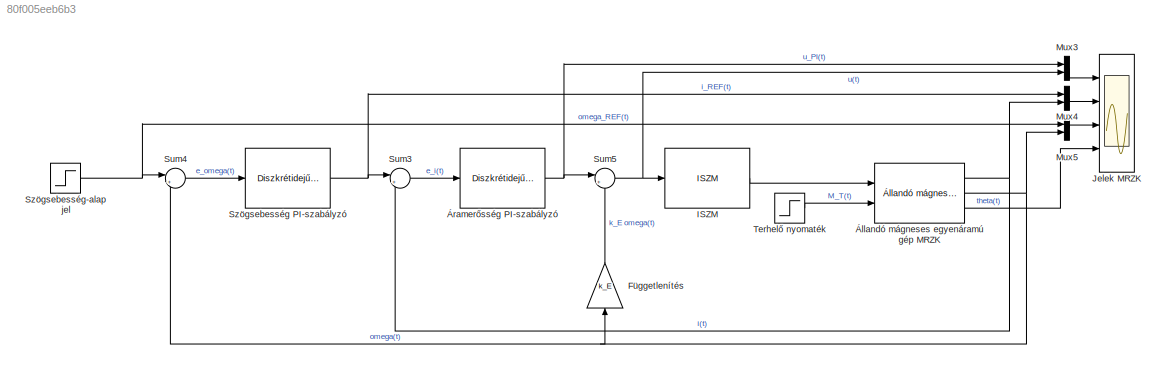
MODEL slx_80f005eeb6b3
KIND model
CONFIG InitFcn = % Villamos áramköri rész\nR = 1.76;\nL = 658e-6;\n\n% Mágneskör\nk_T = 68.3e-3;\nk_E = 68.3e-3;\n\n% Forgó részrendszer\nJ = 99.5e-7;\nB = 5.7301e-6;\n\n% A belső áramszabályzókör hangolása\nK_RL = 1/R;\ntau_RL = L/R;\n\n% ZPK\nT_I_RL_ZPK = tau_RL;\nK_PI_RL_ZPK = 1/K_RL * 10;\n\n% MRZK\nxi_CL_RL = 1;\ntau_CL_RL = tau_RL/10;\n\nK_PI_RL_MRZK = (2*xi_CL_RL*tau_RL - tau_CL_RL)/(K_RL*tau_CL_RL);\nT_I_RL_MRZK = (2*xi_CL_RL*tau_...<+343ch>
BLOCK [Gain] Függetlenítés
  Gain = k_E
  OutDataTypeStr = Inherit: Inherit via internal rule
  ParamDataTypeStr = Inherit: Inherit via internal rule
  SaturateOnIntegerOverflow = off
BLOCK [Reference] ISZM  REF=RI_MK/ISZM
  Ports = [1, 1]
  SourceBlock = RI_MK/ISZM
  SourceType = Impulzusszélesség-modulátor
  T_S = 400e-9
  U_T = 48
  f_ISZM = 25000
BLOCK [Scope] Jelek MRZK
  DataFormat = StructureWithTime
  Floating = off
  LegendLocations = 0.93793     0.92549    0.046354     0.03666\n0.93429      0.6872        0.05     0.03666\n0.91866     0.44993    0.065625     0.03666\n0.93611     0.22811    0.047396    0.020706
  LimitDataPoints = off
  NumInputPorts = 4
  Ports = [4]
  SampleTime = 0
  SaveName = ScopeData1
  ShowLegends = on
  TimeRange = 0.08
  YMax = 50~5~300~0.7000000000000001
  YMin = -50~-5~-50~-0.1
  ZoomMode = xonly
BLOCK [Mux] Mux3
  DisplayOption = bar
  Inputs = 2
  Ports = [2, 1]
BLOCK [Mux] Mux4
  DisplayOption = bar
  Inputs = 2
  Ports = [2, 1]
BLOCK [Mux] Mux5
  DisplayOption = bar
  Inputs = 2
  Ports = [2, 1]
BLOCK [Sum] Sum3
  IconShape = round
  InputSameDT = off
  Inputs = |+-
  OutDataTypeStr = Inherit: Inherit via internal rule
  Ports = [2, 1]
  SaturateOnIntegerOverflow = off
BLOCK [Sum] Sum4
  IconShape = round
  InputSameDT = off
  Inputs = |+-
  OutDataTypeStr = Inherit: Inherit via internal rule
  Ports = [2, 1]
  SaturateOnIntegerOverflow = off
BLOCK [Sum] Sum5
  IconShape = round
  InputSameDT = off
  Inputs = |++
  OutDataTypeStr = Inherit: Inherit via internal rule
  Ports = [2, 1]
  SaturateOnIntegerOverflow = off
BLOCK [Reference] Szögsebesség PI-szabályzó  REF=RI_MK/Diszkrétidejű soros PI-szabályzó korlátozással
  K_PI = 1
  L_L = -5
  L_U = 5
  Ports = [1, 1]
  SourceBlock = RI_MK/Diszkrétidejű soros PI-szabályzó korlátozással
  SourceType = Soros PI-szabályzó
  T_I = 1
  T_S = 1/25000
  T_T = 1
BLOCK [Step] Szögsebesség-alapjel
  After = 300
  SampleTime = 0
  Time = 10e-3
BLOCK [Step] Terhelő nyomaték
  After = 100e-3
  SampleTime = 0
  Time = 50e-3
BLOCK [Reference] Állandó mágneses egyenáramú gép MRZK  REF=RI_MK/Állandó mágneses egyenáramú gép
  B = B
  J = J
  L = L
  Ports = [2, 3]
  R = R
  SourceBlock = RI_MK/Állandó mágneses egyenáramú gép
  SourceType = Állandó mágneses egyenáramú gép
  i_0 = 0
  k_E = k_E
  k_T = k_T
  omega_0 = 0
  theta_0 = 0
BLOCK [Reference] Áramerősség PI-szabályzó  REF=RI_MK/Diszkrétidejű soros PI-szabályzó korlátozással
  K_PI = K_PI_RL_MRZK
  L_L = -48
  L_U = 48
  Ports = [1, 1]
  SourceBlock = RI_MK/Diszkrétidejű soros PI-szabályzó korlátozással
  SourceType = Soros PI-szabályzó
  T_I = T_I_RL_MRZK
  T_S = 1/25000
  T_T = T_I_RL_MRZK
LINE Függetlenítés:1 -> Sum5:2
LINE ISZM:1 -> Állandó mágneses egyenáramú gép MRZK:1
LINE Mux3:1 -> Jelek MRZK:1
LINE Mux4:1 -> Jelek MRZK:2
LINE Mux5:1 -> Jelek MRZK:3
LINE Sum3:1 -> Áramerősség PI-szabályzó:1
LINE Sum4:1 -> Szögsebesség PI-szabályzó:1
NET Sum5:1 -> ISZM:1, Mux3:2
NET Szögsebesség PI-szabályzó:1 -> Mux4:1, Sum3:1
NET Szögsebesség-alapjel:1 -> Mux5:1, Sum4:1
LINE Terhelő nyomaték:1 -> Állandó mágneses egyenáramú gép MRZK:2
NET Állandó mágneses egyenáramú gép MRZK:1 -> Mux4:2, Sum3:2
NET Állandó mágneses egyenáramú gép MRZK:2 -> Függetlenítés:1, Mux5:2, Sum4:2
LINE Állandó mágneses egyenáramú gép MRZK:3 -> Jelek MRZK:4
NET Áramerősség PI-szabályzó:1 -> Mux3:1, Sum5:1
note: NET lines group one-source signal fan-out (src -> all destinations, sorted); 1:1 wires keep LINE
